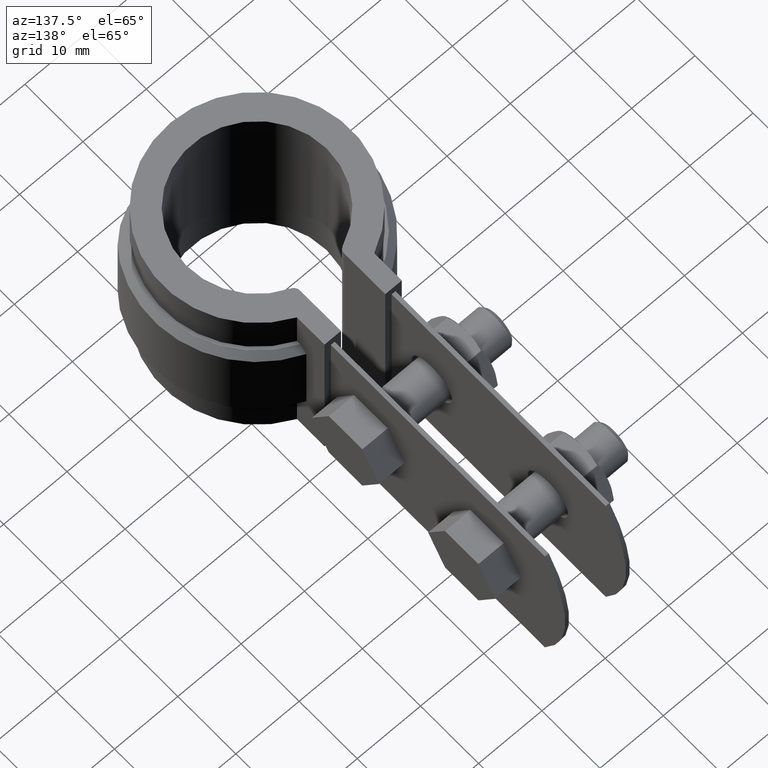
[diagram: clean part render]
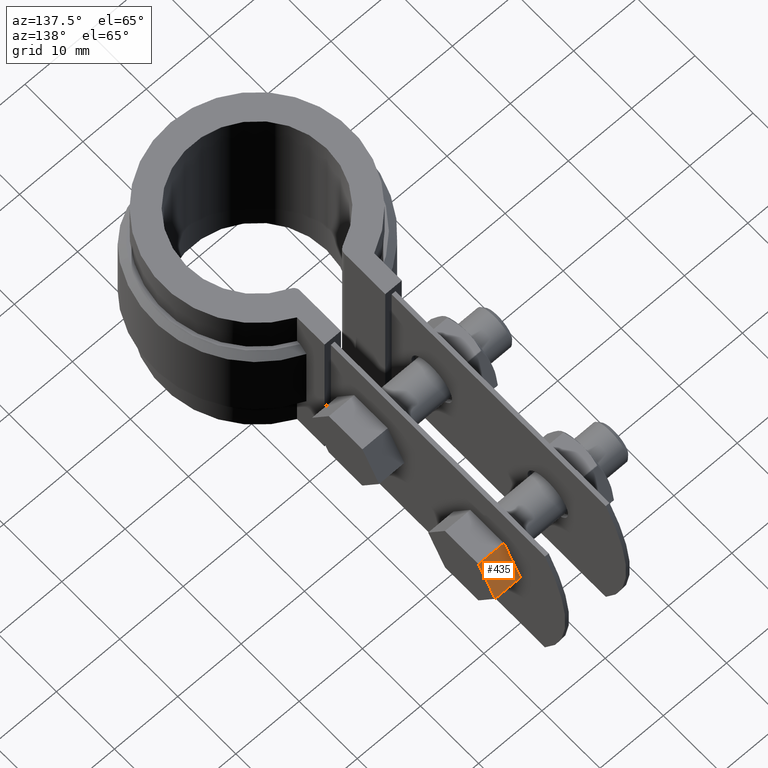
[diagram: same view with one face highlighted and labeled with its STEP entity id]
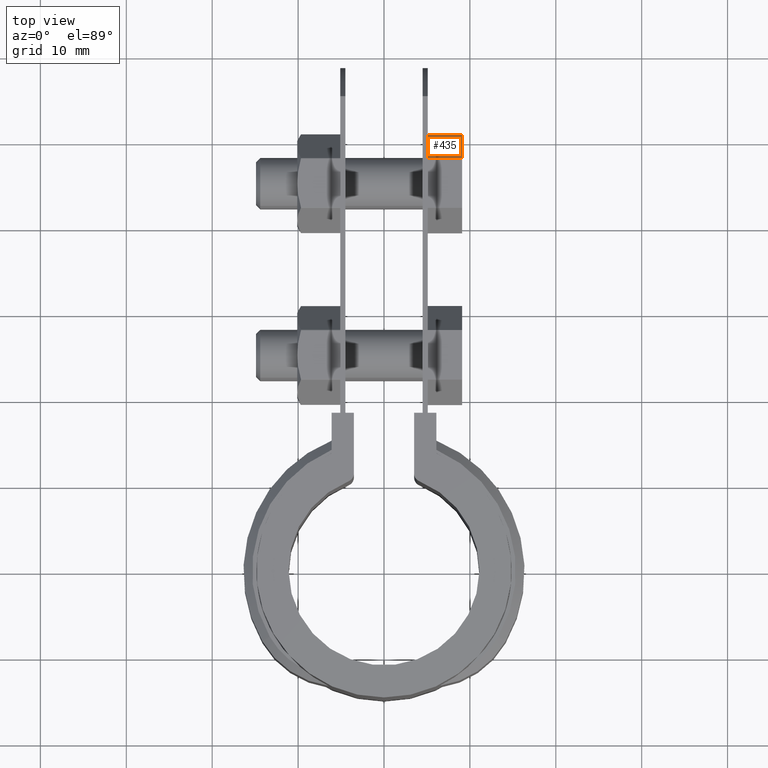
[diagram: same view with one face highlighted and labeled with its STEP entity id]
A machine part, auxiliary view. The second image highlights one B-rep face of the part: STEP entity #435.
A second angle (top view) of the same face is appended — the face is thin or edge-on in the first view.
In plain terms, the highlighted planar face has unit normal (-0, -0.866, -0.5).
Its self-contained STEP definition (entity closure, byte-faithful):
#435 = ADVANCED_FACE( '', ( #757 ), #758, .F. );
#757 = FACE_OUTER_BOUND( '', #1543, .T. );
#758 = PLANE( '', #1544 );
#1543 = EDGE_LOOP( '', ( #3661, #3662, #3663, #3664 ) );
#1544 = AXIS2_PLACEMENT_3D( '', #3665, #3666, #3667 );
#3661 = ORIENTED_EDGE( '', *, *, #4491, .T. );
#3662 = ORIENTED_EDGE( '', *, *, #4496, .F. );
#3663 = ORIENTED_EDGE( '', *, *, #4497, .F. );
#3664 = ORIENTED_EDGE( '', *, *, #4493, .T. );
#3665 = CARTESIAN_POINT( '', ( 9.10000000000012, 50.9715173541317, -12.4999999999999 ) );
#3666 = DIRECTION( '', ( -7.00649232162388E-046, -0.866025403784432, -0.500000000000011 ) );
#3667 = DIRECTION( '', ( 1.21356006838941E-045, 0.500000000000011, -0.866025403784432 ) );
#4491 = EDGE_CURVE( '', #5211, #5219, #5221, .T. );
#4493 = EDGE_CURVE( '', #5224, #5211, #5225, .T. );
#4496 = EDGE_CURVE( '', #5229, #5219, #5230, .T. );
#4497 = EDGE_CURVE( '', #5224, #5229, #5231, .T. );
#5211 = VERTEX_POINT( '', #7523 );
#5219 = VERTEX_POINT( '', #7535 );
#5221 = LINE( '', #7538, #7539 );
#5224 = VERTEX_POINT( '', #7542 );
#5225 = LINE( '', #7543, #7544 );
#5229 = VERTEX_POINT( '', #7550 );
#5230 = LINE( '', #7551, #7552 );
#5231 = LINE( '', #7553, #7554 );
#7523 = CARTESIAN_POINT( '', ( 5.10000000000000, 50.9715173541317, -12.4999999999999 ) );
#7535 = CARTESIAN_POINT( '', ( 5.10000000000000, 48.0847660081836, -7.49999999999979 ) );
#7538 = CARTESIAN_POINT( '', ( 5.10000000000000, 50.9715173541317, -12.4999999999999 ) );
#7539 = VECTOR( '', #8381, 999.999999999992 );
#7542 = CARTESIAN_POINT( '', ( 9.10000000000012, 50.9715173541317, -12.4999999999999 ) );
#7543 = CARTESIAN_POINT( '', ( 9.10000000000012, 50.9715173541317, -12.4999999999999 ) );
#7544 = VECTOR( '', #8385, 1000.00000000000 );
#7550 = CARTESIAN_POINT( '', ( 9.10000000000012, 48.0847660081836, -7.49999999999979 ) );
#7551 = CARTESIAN_POINT( '', ( 9.10000000000012, 48.0847660081836, -7.49999999999979 ) );
#7552 = VECTOR( '', #8388, 1000.00000000000 );
#7553 = CARTESIAN_POINT( '', ( 9.10000000000012, 50.9715173541317, -12.4999999999999 ) );
#7554 = VECTOR( '', #8389, 999.999999999992 );
#8381 = DIRECTION( '', ( -1.21356006838939E-045, -0.499999999999989, 0.866025403784445 ) );
#8385 = DIRECTION( '', ( -1.00000000000000, 1.21356006838940E-045, -7.00649232162396E-046 ) );
#8388 = DIRECTION( '', ( -1.00000000000000, 1.21356006838940E-045, -7.00649232162396E-046 ) );
#8389 = DIRECTION( '', ( -1.21356006838939E-045, -0.499999999999989, 0.866025403784445 ) );